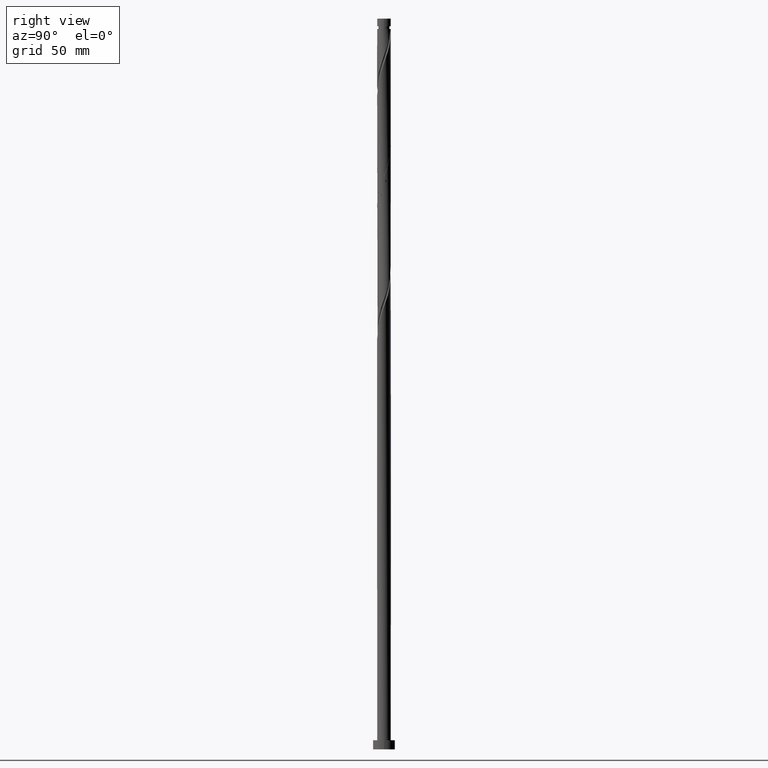
[diagram: clean part render]
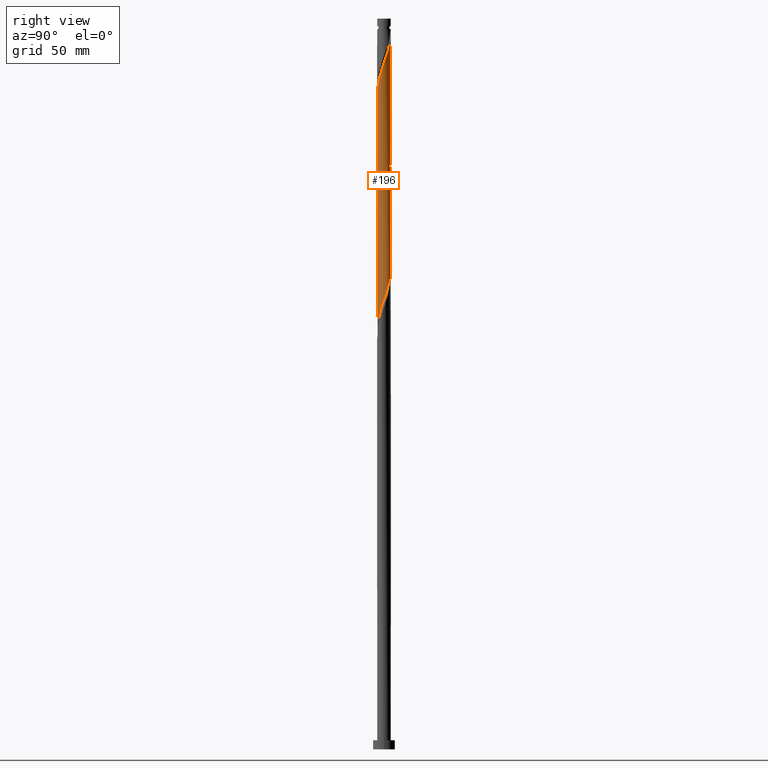
[diagram: same view with one face highlighted and labeled with its STEP entity id]
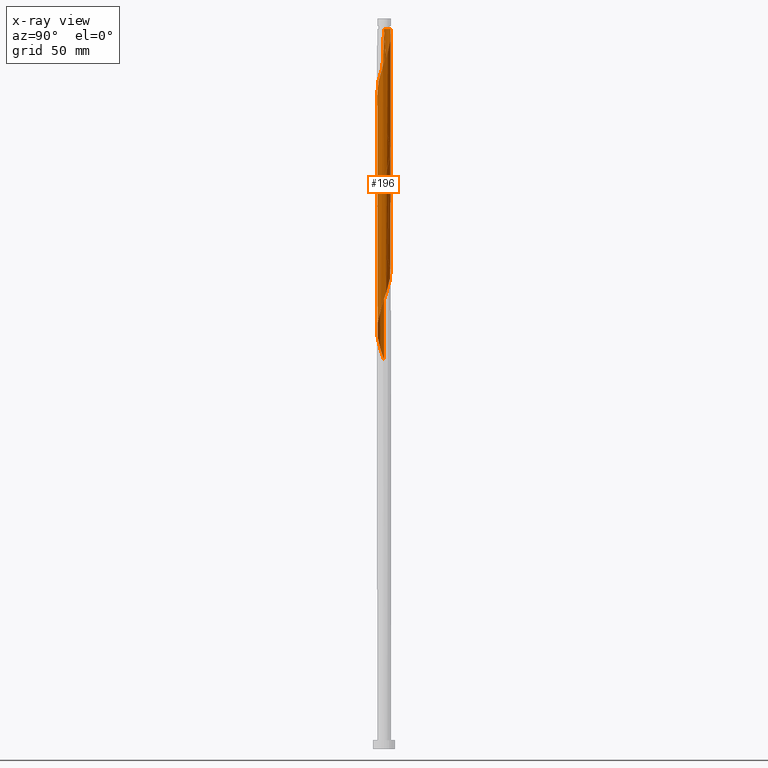
[diagram: x-ray of the same camera — body ghosted, the highlighted face saturated]
A machine part, right view. The second image highlights one B-rep face of the part: STEP entity #196.
The next image is the same camera in x-ray: the body ghosted, the highlighted face saturated — about 0% of this face is hidden behind the body in this view.
In plain terms, the highlighted cylindrical surface (bore or boss wall) has radius 3.75 mm, axis along (-0, -0, -1).
Its self-contained STEP definition (entity closure, byte-faithful):
#8 = CARTESIAN_POINT ( 'NONE',  ( -3.030219662713866668, -2.244017787532027519, 219.8551011145630127 ) ) ;
#22 = CARTESIAN_POINT ( 'NONE',  ( -3.750000000000000000, -4.349988887413529122E-15, 213.0916554691957003 ) ) ;
#29 = CARTESIAN_POINT ( 'NONE',  ( 3.230389643962375601, 1.904490154393199575, 252.0773233367852413 ) ) ;
#30 = CARTESIAN_POINT ( 'NONE',  ( -3.264531676943047689, 1.845354418596983459, 340.9662122256741554 ) ) ;
#32 = ORIENTED_EDGE ( 'NONE', *, *, #1750, .F. ) ;
#36 = CARTESIAN_POINT ( 'NONE',  ( -2.809523069992831967, -2.483763297735532394, 349.8551011145629559 ) ) ;
#38 = CARTESIAN_POINT ( 'NONE',  ( 0.7462405778299692205, 3.674999999999999378, 260.9662122256740986 ) ) ;
#41 = CARTESIAN_POINT ( 'NONE',  ( 0.03414203298067203241, -3.749844572990185476, 296.5217677812296984 ) ) ;
#47 = CARTESIAN_POINT ( 'NONE',  ( -0.8130324731184077613, 3.660802944390063818, 265.4106566701186125 ) ) ;
#48 = CARTESIAN_POINT ( 'NONE',  ( -3.070577111982274676, 2.188470524002659623, 339.8551011145630127 ) ) ;
#52 = ORIENTED_EDGE ( 'NONE', *, *, #254, .T. ) ;
#57 = CARTESIAN_POINT ( 'NONE',  ( 2.497444560349060705, 2.824998708502494793, 255.4106566701185272 ) ) ;
#58 = CARTESIAN_POINT ( 'NONE',  ( 2.176481853488724916, 3.053756169283048383, 323.1884344478963840 ) ) ;
#60 = CARTESIAN_POINT ( 'NONE',  ( 1.197798367046861046, -3.575349788056792377, 299.8551011145630696 ) ) ;
#67 = CARTESIAN_POINT ( 'NONE',  ( 3.030219662713868445, 2.244017787532025299, 253.1884344478964124 ) ) ;
#68 = CARTESIAN_POINT ( 'NONE',  ( 3.230389643962375601, 1.904490154393199575, 318.7439900034519269 ) ) ;
#73 = AXIS2_PLACEMENT_3D ( 'NONE', #836, #82, #663 ) ;
#77 = CARTESIAN_POINT ( 'NONE',  ( -0.3599825132286090801, -3.753433045257034806, 228.7439900034519553 ) ) ;
#82 = DIRECTION ( 'NONE',  ( -0.000000000000000000, -0.000000000000000000, -1.000000000000000000 ) ) ;
#96 = CARTESIAN_POINT ( 'NONE',  ( 3.750000000000000000, 2.825250514505694050E-15, 313.0916554691957003 ) ) ;
#99 = CARTESIAN_POINT ( 'NONE',  ( -3.750000000000000000, 0.000000000000000000, 400.0000000000000000 ) ) ;
#105 = CARTESIAN_POINT ( 'NONE',  ( 3.725733717826329450, 0.4259204900588786646, 314.2995455590073561 ) ) ;
#110 = CARTESIAN_POINT ( 'NONE',  ( 1.556389492818216702, 3.411766660638603899, 387.6328788923407274 ) ) ;
#117 = CARTESIAN_POINT ( 'NONE',  ( -0.7462405778283593971, 3.674999999983999288, 394.2995455590075835 ) ) ;
#119 = CARTESIAN_POINT ( 'NONE',  ( 1.914980618589569250, 3.248183533220410091, 386.5217677812296415 ) ) ;
#167 = CARTESIAN_POINT ( 'NONE',  ( -3.555763647822794749, -1.191236702264466762, 216.5217677812296415 ) ) ;
#176 = CARTESIAN_POINT ( 'NONE',  ( -0.8130324731184077613, 3.660802944390063818, 332.0773233367852413 ) ) ;
#179 = CARTESIAN_POINT ( 'NONE',  ( -3.732871346306940730, -0.3580104913555483548, 343.1884344478962703 ) ) ;
#183 = CARTESIAN_POINT ( 'NONE',  ( 0.000000000000000000, 0.000000000000000000, 394.2995455590074698 ) ) ;
#190 = CARTESIAN_POINT ( 'NONE',  ( -3.750000000000004441, -1.569583619169819247E-15, 342.1741023154859249 ) ) ;
#196 = ADVANCED_FACE ( 'NONE', ( #645 ), #846, .T. ) ;
#198 = CARTESIAN_POINT ( 'NONE',  ( -3.030219662713866668, -2.244017787532027519, 286.5217677812296984 ) ) ;
#203 = CARTESIAN_POINT ( 'NONE',  ( -2.231724823296476146, -3.013619802344408072, 352.0773233367852413 ) ) ;
#205 = CARTESIAN_POINT ( 'NONE',  ( 1.855519146628387128, 3.282513630063605081, 257.6328788923408410 ) ) ;
#206 = CARTESIAN_POINT ( 'NONE',  ( 0.3599825132286074147, 3.753433045257034362, 328.7439900034518701 ) ) ;
#213 = CARTESIAN_POINT ( 'NONE',  ( 1.494008894529859299, 3.439540292403283406, 325.4106566701186125 ) ) ;
#214 = CARTESIAN_POINT ( 'NONE',  ( 2.763832111531465685, -2.534508248017266485, 367.6328788923408410 ) ) ;
#223 = CARTESIAN_POINT ( 'NONE',  ( 0.03414203298067203241, -3.749844572990185476, 229.8551011145630127 ) ) ;
#249 = CARTESIAN_POINT ( 'NONE',  ( 2.231724823296470372, -3.013619802344404963, 236.5217677812296984 ) ) ;
#252 = CARTESIAN_POINT ( 'NONE',  ( -3.732871346306935845, 0.3580104913555497426, 278.7439900034519837 ) ) ;
#254 = EDGE_CURVE ( 'NONE', #582, #459, #998, .T. ) ;
#256 = CARTESIAN_POINT ( 'NONE',  ( 3.770499765217955268, -0.03433009684319965338, 375.4106566701184420 ) ) ;
#260 = CARTESIAN_POINT ( 'NONE',  ( 3.264531676943047689, -1.845354418596983903, 240.9662122256741270 ) ) ;
#266 = CARTESIAN_POINT ( 'NONE',  ( 3.725733717826334335, -0.4259204900588811626, 374.2995455590074130 ) ) ;
#281 = CARTESIAN_POINT ( 'NONE',  ( -3.680967670434709405, -0.8175108832745607845, 215.4106566701186409 ) ) ;
#306 = CARTESIAN_POINT ( 'NONE',  ( -3.749999999999964029, 0.000000000000000000, 394.2995455590074698 ) ) ;
#320 = ORIENTED_EDGE ( 'NONE', *, *, #1569, .F. ) ;
#328 = CARTESIAN_POINT ( 'NONE',  ( 3.264531676943047689, -1.845354418596983903, 307.6328788923407842 ) ) ;
#335 = CARTESIAN_POINT ( 'NONE',  ( -3.750000000000000000, -1.928345589265790858E-15, 346.4249888025290147 ) ) ;
#338 = CARTESIAN_POINT ( 'NONE',  ( -3.576864584649876555, -1.126294696372802218, 345.4106566701185557 ) ) ;
#345 = CARTESIAN_POINT ( 'NONE',  ( -1.197798367046861934, 3.575349788056791489, 333.1884344478963840 ) ) ;
#347 = CARTESIAN_POINT ( 'NONE',  ( -3.430559625210882757, -1.564962521254375183, 284.2995455590075835 ) ) ;
#354 = CARTESIAN_POINT ( 'NONE',  ( 3.430559625210883201, 1.564962521254374739, 317.6328788923408410 ) ) ;
#363 = CARTESIAN_POINT ( 'NONE',  ( 3.750000000000000444, -0.1794149973253062191, 312.5831069436316056 ) ) ;
#384 = CARTESIAN_POINT ( 'NONE',  ( 2.809523069992833300, 2.483763297735531062, 383.1884344478964408 ) ) ;
#388 = CARTESIAN_POINT ( 'NONE',  ( 1.914980618589562367, -3.248183533220407870, 235.4106566701186125 ) ) ;
#399 = CARTESIAN_POINT ( 'NONE',  ( 0.8130324731184064291, -3.660802944390064262, 232.0773233367852413 ) ) ;
#402 = CARTESIAN_POINT ( 'NONE',  ( -3.458486241903820702, 1.502238313191308405, 275.4106566701186694 ) ) ;
#408 = VERTEX_POINT ( 'NONE', #117 ) ;
#410 = CARTESIAN_POINT ( 'NONE',  ( -1.556389492818213149, 3.411766660638600346, 267.6328788923407274 ) ) ;
#429 = CARTESIAN_POINT ( 'NONE',  ( -3.264531676943051686, -1.845354418596985679, 347.6328788923407842 ) ) ;
#447 = CARTESIAN_POINT ( 'NONE',  ( 3.750000000000000000, 4.592425496802572986E-16, 400.0000000000000000 ) ) ;
#450 = ORIENTED_EDGE ( 'NONE', *, *, #1121, .T. ) ;
#459 = VERTEX_POINT ( 'NONE', #22 ) ;
#462 = CARTESIAN_POINT ( 'NONE',  ( -3.070577111982280005, -2.188470524002660511, 348.7439900034519269 ) ) ;
#467 = CARTESIAN_POINT ( 'NONE',  ( -3.695242927395926191, -0.7503510795542960299, 344.2995455590072993 ) ) ;
#475 = CARTESIAN_POINT ( 'NONE',  ( -2.809523069992826638, 2.483763297735531062, 338.7439900034518701 ) ) ;
#485 = CARTESIAN_POINT ( 'NONE',  ( 1.132498642431332359, 3.596566954742962618, 259.8551011145629559 ) ) ;
#487 = CARTESIAN_POINT ( 'NONE',  ( 2.497444560349061149, -2.824998708502501454, 366.5217677812296415 ) ) ;
#489 = CARTESIAN_POINT ( 'NONE',  ( -0.7462405778299688874, -3.674999999999999378, 294.2995455590074698 ) ) ;
#496 = CARTESIAN_POINT ( 'NONE',  ( 3.458486241903820702, -1.502238313191309738, 242.0773233367852413 ) ) ;
#500 = CARTESIAN_POINT ( 'NONE',  ( -3.680967670434709405, -0.8175108832745607845, 282.0773233367852413 ) ) ;
#507 = CARTESIAN_POINT ( 'NONE',  ( 3.430559625210883201, 1.564962521254374739, 250.9662122256741554 ) ) ;
#537 = CARTESIAN_POINT ( 'NONE',  ( 3.070577111982272900, -2.188470524002661843, 239.8551011145630412 ) ) ;
#545 = CARTESIAN_POINT ( 'NONE',  ( 1.556389492818212705, -3.411766660638599902, 234.2995455590074698 ) ) ;
#548 = CARTESIAN_POINT ( 'NONE',  ( -3.750000000000000000, 0.000000000000000000, 400.0000000000000000 ) ) ;
#564 = CARTESIAN_POINT ( 'NONE',  ( -3.725733717826329450, -0.4259204900588791087, 214.2995455590074698 ) ) ;
#569 = LINE ( 'NONE', #447, #1552 ) ;
#582 = VERTEX_POINT ( 'NONE', #1433 ) ;
#588 = CARTESIAN_POINT ( 'NONE',  ( -3.230389643962374713, -1.904490154393200241, 218.7439900034518701 ) ) ;
#612 = CARTESIAN_POINT ( 'NONE',  ( 3.555763647822795637, 1.191236702264465430, 316.5217677812295847 ) ) ;
#615 = ORIENTED_EDGE ( 'NONE', *, *, #673, .T. ) ;
#620 = CARTESIAN_POINT ( 'NONE',  ( -3.576864584649870338, 1.126294696372802662, 343.1884344478962703 ) ) ;
#622 = CARTESIAN_POINT ( 'NONE',  ( 1.556389492818212705, -3.411766660638599902, 300.9662122256741554 ) ) ;
#623 = CARTESIAN_POINT ( 'NONE',  ( 3.230389643962377821, -1.904490154393205792, 369.8551011145629559 ) ) ;
#628 = CARTESIAN_POINT ( 'NONE',  ( 0.3599825132286074147, 3.753433045257034362, 262.0773233367852413 ) ) ;
#629 = CARTESIAN_POINT ( 'NONE',  ( -3.732871346306935845, 0.3580104913555497426, 345.4106566701186125 ) ) ;
#631 = CARTESIAN_POINT ( 'NONE',  ( 2.231724823296470372, -3.013619802344404963, 303.1884344478962134 ) ) ;
#638 = CARTESIAN_POINT ( 'NONE',  ( -0.8130324731184105369, -3.660802944390068703, 356.5217677812296415 ) ) ;
#640 = CARTESIAN_POINT ( 'NONE',  ( 3.732871346306935401, -0.3580104913555510748, 245.4106566701186125 ) ) ;
#642 = CARTESIAN_POINT ( 'NONE',  ( 2.497444560349060705, 2.824998708502494793, 322.0773233367852981 ) ) ;
#644 = CARTESIAN_POINT ( 'NONE',  ( 0.8130324731184064291, -3.660802944390064262, 298.7439900034519269 ) ) ;
#645 = FACE_OUTER_BOUND ( 'NONE', #1172, .T. ) ;
#652 = CARTESIAN_POINT ( 'NONE',  ( -3.770499765217950827, -0.03433009684319652394, 279.8551011145628991 ) ) ;
#657 =( BOUNDED_CURVE ( )  B_SPLINE_CURVE ( 2, ( #1233, #363, #946, #916, #1387, #1639, #328, #1668, #1377, #801, #631, #908, #622, #60, #644, #1347, #41, #1198, #489, #774, #1073, #1062, #1658, #1500, #1821, #198, #1220, #347, #937, #500, #1520, #652, #252, #1109, #1861, #402, #988, #966, #1566, #838, #1550, #820, #410, #1188, #47, #1508, #1635, #628, #38, #485, #1206, #205, #1781, #57, #1674, #67, #29, #507, #1335, #933, #1799, #1070, #640, #904, #1809, #496, #260, #537, #955, #985, #249, #388, #545, #1710, #399, #1719, #223, #77, #1536, #1429, #1460, #882, #1440, #856, #1740, #8, #588, #1168, #167, #281, #564, #1450, #1017 ),
 .UNSPECIFIED., .F., .T. ) 
 B_SPLINE_CURVE_WITH_KNOTS ( ( 3, 2, 2, 2, 2, 2, 2, 2, 2, 2, 2, 2, 2, 2, 2, 2, 2, 2, 2, 2, 2, 2, 2, 2, 2, 2, 2, 2, 2, 2, 2, 2, 2, 2, 2, 2, 2, 2, 2, 2, 2, 2, 2, 2, 2, 2, 3 ),
 ( 0.5545286012773112949, 0.5583333333333333481, 0.5666666666666666519, 0.5749999999999999556, 0.5833333333333333703, 0.5916666666666666741, 0.5999999999999999778, 0.6083333333333332815, 0.6166666666666666963, 0.6250000000000000000, 0.6333333333333333037, 0.6416666666666667185, 0.6500000000000000222, 0.6583333333333333259, 0.6666666666666666297, 0.6750000000000000444, 0.6833333333333333481, 0.6916666666666666519, 0.6999999999999999556, 0.7083333333333333703, 0.7166666666666666741, 0.7249999999999999778, 0.7333333333333332815, 0.7416666666666666963, 0.7500000000000000000, 0.7583333333333333037, 0.7666666666666667185, 0.7750000000000000222, 0.7833333333333333259, 0.7916666666666666297, 0.8000000000000000444, 0.8083333333333333481, 0.8166666666666666519, 0.8249999999999999556, 0.8333333333333333703, 0.8416666666666666741, 0.8499999999999999778, 0.8583333333333332815, 0.8666666666666666963, 0.8750000000000000000, 0.8833333333333333037, 0.8916666666666667185, 0.9000000000000000222, 0.9083333333333333259, 0.9166666666666666297, 0.9250000000000000444, 0.9295286012773112949 ),
 .UNSPECIFIED. ) 
 CURVE ( )  GEOMETRIC_REPRESENTATION_ITEM ( )  RATIONAL_B_SPLINE_CURVE ( ( 0.9066196499552368060, 0.9068171577856494192, 0.9090909090909484735, 0.9041108139711966363, 0.9090909090909484735, 0.9041108139711966363, 0.9090909090909484735, 0.9041108139711966363, 0.9090909090909484735, 0.9041108139711966363, 0.9090909090909484735, 0.9041108139711966363, 0.9090909090909484735, 0.9041108139711966363, 0.9090909090909484735, 0.9041108139711966363, 0.9090909090909484735, 0.9041108139711966363, 0.9090909090909484735, 0.9041108139711966363, 0.9090909090909484735, 0.9041108139711966363, 0.9090909090909484735, 0.9041108139711966363, 0.9090909090909484735, 0.9041108139711966363, 0.9090909090909484735, 0.9041108139711966363, 0.9090909090909484735, 0.9041108139711966363, 0.9090909090909484735, 0.9041108139711966363, 0.9090909090909484735, 0.9041108139711966363, 0.9090909090909484735, 0.9041108139711966363, 0.9090909090909484735, 0.9041108139711966363, 0.9090909090909484735, 0.9041108139711966363, 0.9090909090909484735, 0.9041108139711966363, 0.9090909090909484735, 0.9041108139711966363, 0.9090909090909484735, 0.9041108139711966363, 0.9090909090909484735, 0.9041108139711966363, 0.9090909090909484735, 0.9041108139711966363, 0.9090909090909484735, 0.9041108139711966363, 0.9090909090909484735, 0.9041108139711966363, 0.9090909090909484735, 0.9041108139711966363, 0.9090909090909484735, 0.9041108139711966363, 0.9090909090909484735, 0.9041108139711966363, 0.9090909090909484735, 0.9041108139711966363, 0.9090909090909484735, 0.9041108139711966363, 0.9090909090909484735, 0.9041108139711966363, 0.9090909090909484735, 0.9041108139711966363, 0.9090909090909484735, 0.9041108139711966363, 0.9090909090909484735, 0.9041108139711966363, 0.9090909090909484735, 0.9041108139711966363, 0.9090909090909484735, 0.9041108139711966363, 0.9090909090909484735, 0.9041108139711966363, 0.9090909090909484735, 0.9041108139711966363, 0.9090909090909484735, 0.9041108139711966363, 0.9090909090909484735, 0.9041108139711966363, 0.9090909090909484735, 0.9041108139711966363, 0.9090909090909484735, 0.9041108139711966363, 0.9090909090909484735, 0.9041108139711966363, 0.9090909090909484735, 0.9063845652764956906, 0.9066196499552368060 ) ) 
 REPRESENTATION_ITEM ( '' )  );
#663 = DIRECTION ( 'NONE',  ( -1.000000000000000000, 0.000000000000000000, 0.000000000000000000 ) ) ;
#673 = EDGE_CURVE ( 'NONE', #759, #918, #569, .T. ) ;
#686 = CARTESIAN_POINT ( 'NONE',  ( 3.749999999999999112, 0.2136515154241273307, 313.6972467785801655 ) ) ;
#699 = CARTESIAN_POINT ( 'NONE',  ( 0.8130324731184126463, 3.660802944390068259, 389.8551011145629559 ) ) ;
#709 = CARTESIAN_POINT ( 'NONE',  ( -0.7462405778283593971, 3.674999999983999288, 394.2995455590075835 ) ) ;
#728 = CIRCLE ( 'NONE', #1797, 3.749999999999964029 ) ;
#734 = DIRECTION ( 'NONE',  ( -1.000000000000000000, 0.000000000000000000, 0.000000000000000000 ) ) ;
#755 = CARTESIAN_POINT ( 'NONE',  ( -2.231724823296470817, 3.013619802344404075, 336.5217677812297552 ) ) ;
#759 = VERTEX_POINT ( 'NONE', #1196 ) ;
#772 = CARTESIAN_POINT ( 'NONE',  ( -3.749999999999999112, 0.1794149973253136021, 345.9164402769648632 ) ) ;
#774 = CARTESIAN_POINT ( 'NONE',  ( -1.132498642431330138, -3.596566954742963507, 293.1884344478963840 ) ) ;
#781 = CARTESIAN_POINT ( 'NONE',  ( 1.855519146628387128, 3.282513630063605081, 324.2995455590074698 ) ) ;
#801 = CARTESIAN_POINT ( 'NONE',  ( 2.548469028003379488, -2.779056071468402944, 304.2995455590075267 ) ) ;
#820 = CARTESIAN_POINT ( 'NONE',  ( -1.914980618589563921, 3.248183533220407870, 268.7439900034519837 ) ) ;
#823 = CARTESIAN_POINT ( 'NONE',  ( 3.680967670434712957, -0.8175108832745658916, 373.1884344478962134 ) ) ;
#831 = CARTESIAN_POINT ( 'NONE',  ( 3.576864584649876999, 1.126294696372800663, 378.7439900034518701 ) ) ;
#836 = CARTESIAN_POINT ( 'NONE',  ( 0.000000000000000000, 0.000000000000000000, 400.0000000000000000 ) ) ;
#838 = CARTESIAN_POINT ( 'NONE',  ( -2.548469028003380377, 2.779056071468402500, 270.9662122256740986 ) ) ;
#841 = CARTESIAN_POINT ( 'NONE',  ( 2.231724823296477034, 3.013619802344407628, 385.4106566701186125 ) ) ;
#846 = CYLINDRICAL_SURFACE ( 'NONE', #73, 3.750000000000000000 ) ;
#856 = CARTESIAN_POINT ( 'NONE',  ( -2.497444560349060705, -2.824998708502495681, 222.0773233367852413 ) ) ;
#877 = VERTEX_POINT ( 'NONE', #335 ) ;
#882 = CARTESIAN_POINT ( 'NONE',  ( -1.855519146628386684, -3.282513630063605525, 224.2995455590074698 ) ) ;
#902 = CARTESIAN_POINT ( 'NONE',  ( -2.548469028003383485, -2.779056071468405165, 350.9662122256739849 ) ) ;
#904 = CARTESIAN_POINT ( 'NONE',  ( 3.695242927395921750, -0.7503510795542968070, 244.2995455590075267 ) ) ;
#905 = CARTESIAN_POINT ( 'NONE',  ( -3.750000000000000000, -1.928345589265790858E-15, 346.4249888025290147 ) ) ;
#908 = CARTESIAN_POINT ( 'NONE',  ( 1.914980618589562367, -3.248183533220407870, 302.0773233367852413 ) ) ;
#916 = CARTESIAN_POINT ( 'NONE',  ( 3.695242927395921750, -0.7503510795542968070, 310.9662122256740417 ) ) ;
#917 = CARTESIAN_POINT ( 'NONE',  ( -3.458486241903826031, -1.502238313191309516, 346.5217677812296415 ) ) ;
#918 = VERTEX_POINT ( 'NONE', #1819 ) ;
#933 = CARTESIAN_POINT ( 'NONE',  ( 3.680967670434709405, 0.8175108832745596743, 248.7439900034519269 ) ) ;
#934 = CARTESIAN_POINT ( 'NONE',  ( 0.7462405778299692205, 3.674999999999999378, 327.6328788923407274 ) ) ;
#935 = CARTESIAN_POINT ( 'NONE',  ( 1.494008894529858189, -3.439540292403290511, 363.1884344478963271 ) ) ;
#937 = CARTESIAN_POINT ( 'NONE',  ( -3.555763647822794749, -1.191236702264466762, 283.1884344478963840 ) ) ;
#943 = VECTOR ( 'NONE', #1529, 1000.000000000000000 ) ;
#946 = CARTESIAN_POINT ( 'NONE',  ( 3.732871346306935401, -0.3580104913555510748, 312.0773233367852981 ) ) ;
#955 = CARTESIAN_POINT ( 'NONE',  ( 2.809523069992826194, -2.483763297735531950, 238.7439900034518701 ) ) ;
#958 = LINE ( 'NONE', #548, #943 ) ;
#966 = CARTESIAN_POINT ( 'NONE',  ( -3.070577111982274676, 2.188470524002659623, 273.1884344478963840 ) ) ;
#985 = CARTESIAN_POINT ( 'NONE',  ( 2.548469028003379488, -2.779056071468402944, 237.6328788923408126 ) ) ;
#988 = CARTESIAN_POINT ( 'NONE',  ( -3.264531676943047689, 1.845354418596983459, 274.2995455590074130 ) ) ;
#998 = LINE ( 'NONE', #99, #1080 ) ;
#1000 = CARTESIAN_POINT ( 'NONE',  ( -0.3599825132286042506, 3.753433045257040135, 393.1884344478962703 ) ) ;
#1015 = EDGE_CURVE ( 'NONE', #877, #918, #1784, .T. ) ;
#1017 = CARTESIAN_POINT ( 'NONE',  ( -3.750000000000000000, -4.349988887413529911E-15, 213.0916554691957003 ) ) ;
#1027 = DIRECTION ( 'NONE',  ( -0.000000000000000000, -0.000000000000000000, -1.000000000000000000 ) ) ;
#1044 = ORIENTED_EDGE ( 'NONE', *, *, #1015, .F. ) ;
#1047 = CARTESIAN_POINT ( 'NONE',  ( -1.914980618589567030, -3.248183533220410979, 353.1884344478962703 ) ) ;
#1059 = CARTESIAN_POINT ( 'NONE',  ( -2.548469028003380377, 2.779056071468402500, 337.6328788923408979 ) ) ;
#1062 = CARTESIAN_POINT ( 'NONE',  ( -1.855519146628386684, -3.282513630063605525, 290.9662122256740986 ) ) ;
#1070 = CARTESIAN_POINT ( 'NONE',  ( 3.770499765217950827, 0.03433009684319441451, 246.5217677812296984 ) ) ;
#1071 = CARTESIAN_POINT ( 'NONE',  ( -3.695242927395921750, 0.7503510795542961409, 344.2995455590074130 ) ) ;
#1073 = CARTESIAN_POINT ( 'NONE',  ( -1.494008894529858855, -3.439540292403283406, 292.0773233367851844 ) ) ;
#1080 = VECTOR ( 'NONE', #1551, 1000.000000000000000 ) ;
#1109 = CARTESIAN_POINT ( 'NONE',  ( -3.695242927395921750, 0.7503510795542961409, 277.6328788923407274 ) ) ;
#1121 = EDGE_CURVE ( 'NONE', #1467, #408, #728, .T. ) ;
#1168 = CARTESIAN_POINT ( 'NONE',  ( -3.430559625210882757, -1.564962521254375183, 217.6328788923408126 ) ) ;
#1172 = EDGE_LOOP ( 'NONE', ( #320, #450, #32, #52, #1758, #1366, #615, #1044 ) ) ;
#1188 = CARTESIAN_POINT ( 'NONE',  ( -1.197798367046861934, 3.575349788056791489, 266.5217677812296984 ) ) ;
#1196 = CARTESIAN_POINT ( 'NONE',  ( 3.750000000000000000, 4.592425496802572986E-16, 394.2995455590075835 ) ) ;
#1198 = CARTESIAN_POINT ( 'NONE',  ( -0.3599825132286090801, -3.753433045257034806, 295.4106566701184988 ) ) ;
#1199 = CARTESIAN_POINT ( 'NONE',  ( 3.430559625210885866, -1.564962521254378958, 370.9662122256740417 ) ) ;
#1206 = CARTESIAN_POINT ( 'NONE',  ( 1.494008894529859299, 3.439540292403283406, 258.7439900034518701 ) ) ;
#1207 = CARTESIAN_POINT ( 'NONE',  ( -1.914980618589563921, 3.248183533220407870, 335.4106566701185557 ) ) ;
#1216 = CARTESIAN_POINT ( 'NONE',  ( -0.4282665791899551988, -3.746256100723340587, 357.6328788923406705 ) ) ;
#1218 = CARTESIAN_POINT ( 'NONE',  ( 2.763832111531463909, 2.534508248017262044, 320.9662122256740986 ) ) ;
#1220 = CARTESIAN_POINT ( 'NONE',  ( -3.230389643962374713, -1.904490154393200241, 285.4106566701185557 ) ) ;
#1233 = CARTESIAN_POINT ( 'NONE',  ( 3.750000000000000000, 2.825250514505694050E-15, 313.0916554691957003 ) ) ;
#1264 = CARTESIAN_POINT ( 'NONE',  ( 3.555763647822799634, -1.191236702264472314, 372.0773233367852413 ) ) ;
#1266 = EDGE_CURVE ( 'NONE', #918, #459, #657, .T. ) ;
#1274 = CARTESIAN_POINT ( 'NONE',  ( 3.732871346306941618, 0.3580104913555462454, 376.5217677812296415 ) ) ;
#1294 = CARTESIAN_POINT ( 'NONE',  ( 1.197798367046866375, 3.575349788056795486, 388.7439900034518701 ) ) ;
#1305 = CARTESIAN_POINT ( 'NONE',  ( 3.070577111982280893, 2.188470524002659623, 382.0773233367851276 ) ) ;
#1326 = DIRECTION ( 'NONE',  ( -0.000000000000000000, -0.000000000000000000, -1.000000000000000000 ) ) ;
#1335 = CARTESIAN_POINT ( 'NONE',  ( 3.555763647822795637, 1.191236702264465430, 249.8551011145630412 ) ) ;
#1336 = CARTESIAN_POINT ( 'NONE',  ( -0.4282665791899536445, 3.746256100723336147, 330.9662122256741554 ) ) ;
#1347 = CARTESIAN_POINT ( 'NONE',  ( 0.4282665791899532559, -3.746256100723336147, 297.6328788923407842 ) ) ;
#1354 = CARTESIAN_POINT ( 'NONE',  ( 2.176481853488723583, -3.053756169283056376, 365.4106566701185557 ) ) ;
#1361 = CARTESIAN_POINT ( 'NONE',  ( -1.556389492818216480, -3.411766660638603899, 354.2995455590074698 ) ) ;
#1366 = ORIENTED_EDGE ( 'NONE', *, *, #673, .F. ) ;
#1375 = CARTESIAN_POINT ( 'NONE',  ( 1.855519146628387794, -3.282513630063609078, 364.2995455590073561 ) ) ;
#1377 = CARTESIAN_POINT ( 'NONE',  ( 2.809523069992826194, -2.483763297735531950, 305.4106566701184988 ) ) ;
#1387 = CARTESIAN_POINT ( 'NONE',  ( 3.576864584649869450, -1.126294696372804882, 309.8551011145630696 ) ) ;
#1407 = CARTESIAN_POINT ( 'NONE',  ( 3.695242927395926191, 0.7503510795542954748, 377.6328788923407842 ) ) ;
#1415 = CARTESIAN_POINT ( 'NONE',  ( 2.548469028003383485, 2.779056071468404721, 384.2995455590074130 ) ) ;
#1429 = CARTESIAN_POINT ( 'NONE',  ( -1.132498642431330138, -3.596566954742963507, 226.5217677812296699 ) ) ;
#1433 = CARTESIAN_POINT ( 'NONE',  ( -3.750000000000004441, -1.569583619169819050E-15, 342.1741023154859249 ) ) ;
#1435 = CARTESIAN_POINT ( 'NONE',  ( 0.03414203298067567532, 3.749844572990191249, 392.0773233367852413 ) ) ;
#1440 = CARTESIAN_POINT ( 'NONE',  ( -2.176481853488722695, -3.053756169283049715, 223.1884344478963840 ) ) ;
#1446 = CARTESIAN_POINT ( 'NONE',  ( 0.7462405778299683323, -3.675000000000004263, 360.9662122256740417 ) ) ;
#1450 = CARTESIAN_POINT ( 'NONE',  ( -3.749999999999999112, -0.2136515154241286907, 213.6972467785801939 ) ) ;
#1460 = CARTESIAN_POINT ( 'NONE',  ( -1.494008894529858855, -3.439540292403283406, 225.4106566701185557 ) ) ;
#1467 = VERTEX_POINT ( 'NONE', #306 ) ;
#1487 = CARTESIAN_POINT ( 'NONE',  ( 0.3599825132286062490, -3.753433045257039247, 359.8551011145629559 ) ) ;
#1490 = CARTESIAN_POINT ( 'NONE',  ( 1.132498642431328584, -3.596566954742969280, 362.0773233367853550 ) ) ;
#1500 = CARTESIAN_POINT ( 'NONE',  ( -2.497444560349060705, -2.824998708502495681, 288.7439900034519269 ) ) ;
#1508 = CARTESIAN_POINT ( 'NONE',  ( -0.4282665791899536445, 3.746256100723336147, 264.2995455590074698 ) ) ;
#1509 = CARTESIAN_POINT ( 'NONE',  ( -0.03414203298067297609, 3.749844572990185476, 329.8551011145630127 ) ) ;
#1520 = CARTESIAN_POINT ( 'NONE',  ( -3.725733717826329450, -0.4259204900588791087, 280.9662122256740986 ) ) ;
#1521 = CARTESIAN_POINT ( 'NONE',  ( 3.030219662713869777, -2.244017787532032404, 368.7439900034519269 ) ) ;
#1529 = DIRECTION ( 'NONE',  ( -0.000000000000000000, -0.000000000000000000, -1.000000000000000000 ) ) ;
#1536 = CARTESIAN_POINT ( 'NONE',  ( -0.7462405778299688874, -3.674999999999999378, 227.6328788923407842 ) ) ;
#1550 = CARTESIAN_POINT ( 'NONE',  ( -2.231724823296470817, 3.013619802344404075, 269.8551011145629559 ) ) ;
#1551 = DIRECTION ( 'NONE',  ( -0.000000000000000000, -0.000000000000000000, -1.000000000000000000 ) ) ;
#1552 = VECTOR ( 'NONE', #1027, 1000.000000000000000 ) ;
#1566 = CARTESIAN_POINT ( 'NONE',  ( -2.809523069992826638, 2.483763297735531062, 272.0773233367851844 ) ) ;
#1569 = EDGE_CURVE ( 'NONE', #1467, #877, #958, .T. ) ;
#1632 = CARTESIAN_POINT ( 'NONE',  ( -1.197798367046865708, -3.575349788056795486, 355.4106566701186694 ) ) ;
#1635 = CARTESIAN_POINT ( 'NONE',  ( -0.03414203298067297609, 3.749844572990185476, 263.1884344478963840 ) ) ;
#1639 = CARTESIAN_POINT ( 'NONE',  ( 3.458486241903820702, -1.502238313191309738, 308.7439900034519837 ) ) ;
#1649 = CARTESIAN_POINT ( 'NONE',  ( -3.750000000000004885, -0.1794149973253081065, 342.6826508410500196 ) ) ;
#1656 = CARTESIAN_POINT ( 'NONE',  ( -1.556389492818213149, 3.411766660638600346, 334.2995455590074698 ) ) ;
#1658 = CARTESIAN_POINT ( 'NONE',  ( -2.176481853488722695, -3.053756169283049715, 289.8551011145630127 ) ) ;
#1666 = CARTESIAN_POINT ( 'NONE',  ( 1.132498642431332359, 3.596566954742962618, 326.5217677812296984 ) ) ;
#1668 = CARTESIAN_POINT ( 'NONE',  ( 3.070577111982272900, -2.188470524002661843, 306.5217677812297552 ) ) ;
#1674 = CARTESIAN_POINT ( 'NONE',  ( 2.763832111531463909, 2.534508248017262044, 254.2995455590074130 ) ) ;
#1710 = CARTESIAN_POINT ( 'NONE',  ( 1.197798367046861046, -3.575349788056792377, 233.1884344478963271 ) ) ;
#1719 = CARTESIAN_POINT ( 'NONE',  ( 0.4282665791899532559, -3.746256100723336147, 230.9662122256741270 ) ) ;
#1726 = CARTESIAN_POINT ( 'NONE',  ( 0.4282665791899555874, 3.746256100723341032, 390.9662122256739849 ) ) ;
#1740 = CARTESIAN_POINT ( 'NONE',  ( -2.763832111531463465, -2.534508248017262044, 220.9662122256740986 ) ) ;
#1750 = EDGE_CURVE ( 'NONE', #582, #408, #1836, .T. ) ;
#1758 = ORIENTED_EDGE ( 'NONE', *, *, #1266, .F. ) ;
#1781 = CARTESIAN_POINT ( 'NONE',  ( 2.176481853488724916, 3.053756169283048383, 256.5217677812296415 ) ) ;
#1782 = CARTESIAN_POINT ( 'NONE',  ( 3.680967670434709405, 0.8175108832745596743, 315.4106566701185557 ) ) ;
#1784 =( BOUNDED_CURVE ( )  B_SPLINE_CURVE ( 2, ( #905, #772, #629, #1071, #620, #1791, #30, #48, #475, #1059, #755, #1207, #1656, #345, #176, #1336, #1509, #206, #934, #1666, #213, #781, #58, #642, #1218, #1810, #68, #354, #612, #1782, #105, #686, #96 ),
 .UNSPECIFIED., .F., .T. ) 
 B_SPLINE_CURVE_WITH_KNOTS ( ( 3, 2, 2, 2, 2, 2, 2, 2, 2, 2, 2, 2, 2, 2, 2, 2, 3 ),
 ( 0.4295286012773114614, 0.4333333333333333481, 0.4416666666666666519, 0.4500000000000000111, 0.4583333333333333148, 0.4666666666666666741, 0.4749999999999999778, 0.4833333333333333370, 0.4916666666666666408, 0.5000000000000000000, 0.5083333333333333037, 0.5166666666666667185, 0.5250000000000000222, 0.5333333333333333259, 0.5416666666666666297, 0.5500000000000000444, 0.5545286012773112949 ),
 .UNSPECIFIED. ) 
 CURVE ( )  GEOMETRIC_REPRESENTATION_ITEM ( )  RATIONAL_B_SPLINE_CURVE ( ( 0.9066196499552368060, 0.9068171577856495302, 0.9090909090909484735, 0.9041108139711966363, 0.9090909090909484735, 0.9041108139711966363, 0.9090909090909484735, 0.9041108139711966363, 0.9090909090909484735, 0.9041108139711966363, 0.9090909090909484735, 0.9041108139711966363, 0.9090909090909484735, 0.9041108139711966363, 0.9090909090909484735, 0.9041108139711966363, 0.9090909090909484735, 0.9041108139711966363, 0.9090909090909484735, 0.9041108139711966363, 0.9090909090909484735, 0.9041108139711966363, 0.9090909090909484735, 0.9041108139711966363, 0.9090909090909484735, 0.9041108139711966363, 0.9090909090909484735, 0.9041108139711966363, 0.9090909090909484735, 0.9041108139711966363, 0.9090909090909484735, 0.9063845652764956906, 0.9066196499552368060 ) ) 
 REPRESENTATION_ITEM ( '' )  );
#1791 = CARTESIAN_POINT ( 'NONE',  ( -3.458486241903820702, 1.502238313191308405, 342.0773233367853550 ) ) ;
#1797 = AXIS2_PLACEMENT_3D ( 'NONE', #183, #1326, #734 ) ;
#1799 = CARTESIAN_POINT ( 'NONE',  ( 3.725733717826329450, 0.4259204900588786646, 247.6328788923407558 ) ) ;
#1807 = CARTESIAN_POINT ( 'NONE',  ( -0.03414203298067514797, -3.749844572990191249, 358.7439900034518701 ) ) ;
#1809 = CARTESIAN_POINT ( 'NONE',  ( 3.576864584649869450, -1.126294696372804882, 243.1884344478963271 ) ) ;
#1810 = CARTESIAN_POINT ( 'NONE',  ( 3.030219662713868445, 2.244017787532025299, 319.8551011145629559 ) ) ;
#1819 = CARTESIAN_POINT ( 'NONE',  ( 3.750000000000000000, 2.825250514505694050E-15, 313.0916554691957003 ) ) ;
#1821 = CARTESIAN_POINT ( 'NONE',  ( -2.763832111531463465, -2.534508248017262044, 287.6328788923407274 ) ) ;
#1836 =( BOUNDED_CURVE ( )  B_SPLINE_CURVE ( 2, ( #190, #1649, #179, #467, #338, #917, #429, #462, #36, #902, #203, #1047, #1361, #1632, #638, #1216, #1807, #1487, #1446, #1490, #935, #1375, #1354, #487, #214, #1521, #623, #1199, #1264, #823, #266, #256, #1274, #1407, #831, #1875, #1864, #1305, #384, #1415, #841, #119, #110, #1294, #699, #1726, #1435, #1000, #709 ),
 .UNSPECIFIED., .F., .T. ) 
 B_SPLINE_CURVE_WITH_KNOTS ( ( 3, 2, 2, 2, 2, 2, 2, 2, 2, 2, 2, 2, 2, 2, 2, 2, 2, 2, 2, 2, 2, 2, 2, 2, 3 ),
 ( 0.5545286012773114059, 0.5583333333333333481, 0.5666666666666666519, 0.5749999999999999556, 0.5833333333333332593, 0.5916666666666666741, 0.5999999999999999778, 0.6083333333333333925, 0.6166666666666666963, 0.6250000000000000000, 0.6333333333333333037, 0.6416666666666666075, 0.6500000000000000222, 0.6583333333333333259, 0.6666666666666667407, 0.6750000000000000444, 0.6833333333333333481, 0.6916666666666666519, 0.6999999999999999556, 0.7083333333333332593, 0.7166666666666666741, 0.7249999999999999778, 0.7333333333333333925, 0.7416666666666666963, 0.7500000000000000000 ),
 .UNSPECIFIED. ) 
 CURVE ( )  GEOMETRIC_REPRESENTATION_ITEM ( )  RATIONAL_B_SPLINE_CURVE ( ( 0.9066196499552428012, 0.9068171577856555254, 0.9090909090909544688, 0.9041108139712027425, 0.9090909090909544688, 0.9041108139712027425, 0.9090909090909544688, 0.9041108139712027425, 0.9090909090909544688, 0.9041108139712027425, 0.9090909090909544688, 0.9041108139712027425, 0.9090909090909544688, 0.9041108139712027425, 0.9090909090909544688, 0.9041108139712027425, 0.9090909090909544688, 0.9041108139712027425, 0.9090909090909544688, 0.9041108139712027425, 0.9090909090909544688, 0.9041108139712027425, 0.9090909090909544688, 0.9041108139712027425, 0.9090909090909544688, 0.9041108139712027425, 0.9090909090909544688, 0.9041108139712027425, 0.9090909090909544688, 0.9041108139712027425, 0.9090909090909544688, 0.9041108139712027425, 0.9090909090909544688, 0.9041108139712027425, 0.9090909090909544688, 0.9041108139712027425, 0.9090909090909544688, 0.9041108139712027425, 0.9090909090909544688, 0.9041108139712027425, 0.9090909090909544688, 0.9041108139712027425, 0.9090909090909544688, 0.9041108139712027425, 0.9090909090909544688, 0.9041108139712027425, 0.9090909090909544688, 0.9041108139712027425, 0.9090909090909544688 ) ) 
 REPRESENTATION_ITEM ( '' )  );
#1861 = CARTESIAN_POINT ( 'NONE',  ( -3.576864584649870338, 1.126294696372802662, 276.5217677812297552 ) ) ;
#1864 = CARTESIAN_POINT ( 'NONE',  ( 3.264531676943052574, 1.845354418596985235, 380.9662122256740986 ) ) ;
#1875 = CARTESIAN_POINT ( 'NONE',  ( 3.458486241903827363, 1.502238313191306629, 379.8551011145630127 ) ) ;